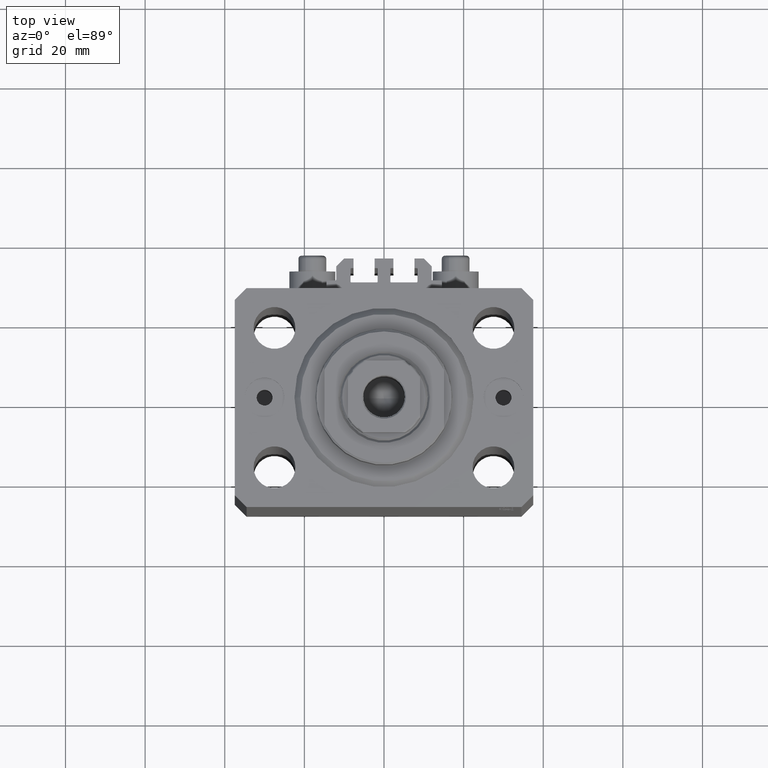
[diagram: clean part render]
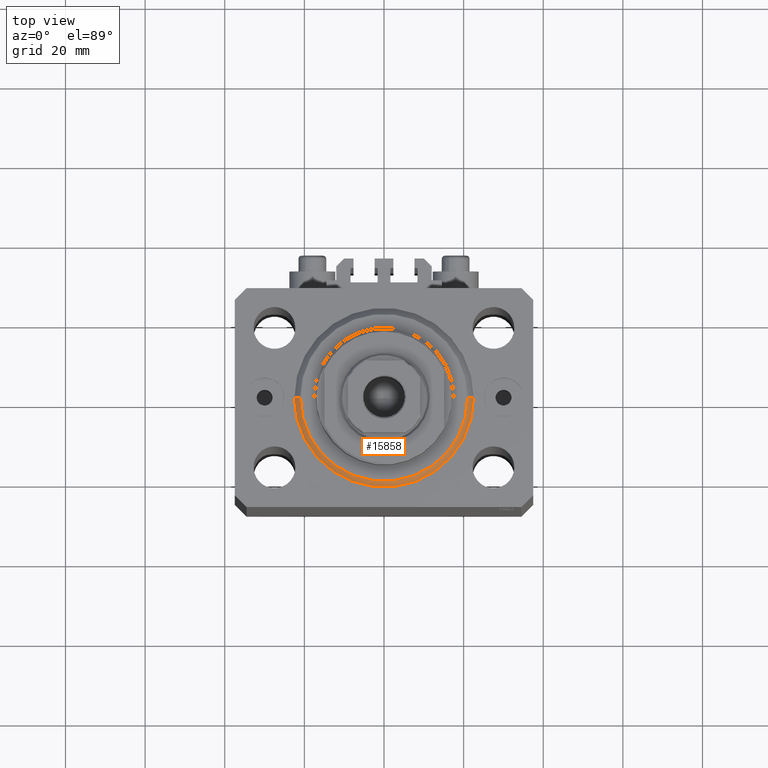
[diagram: same view with one face highlighted and labeled with its STEP entity id]
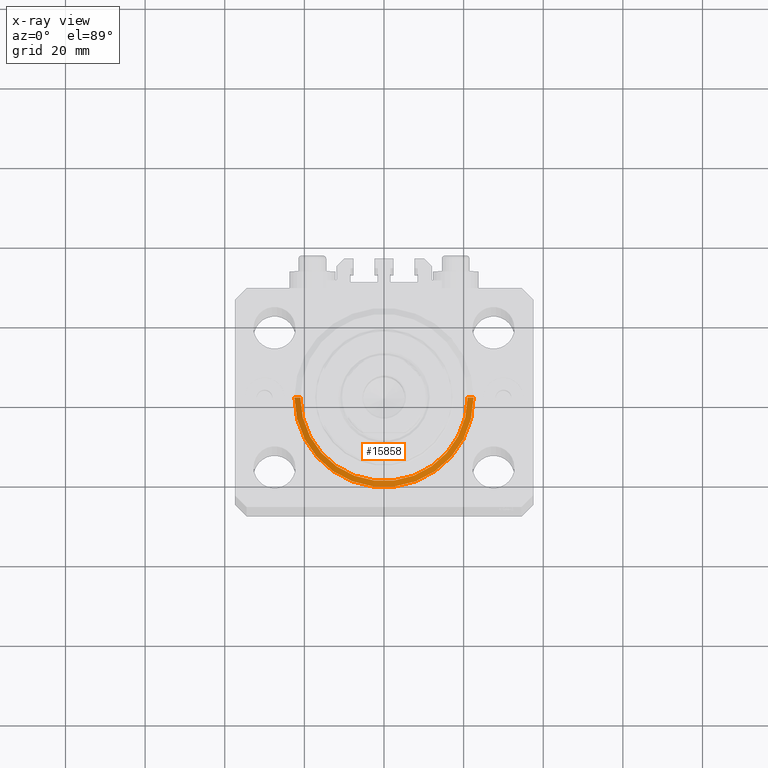
[diagram: x-ray of the same camera — body ghosted, the highlighted face saturated]
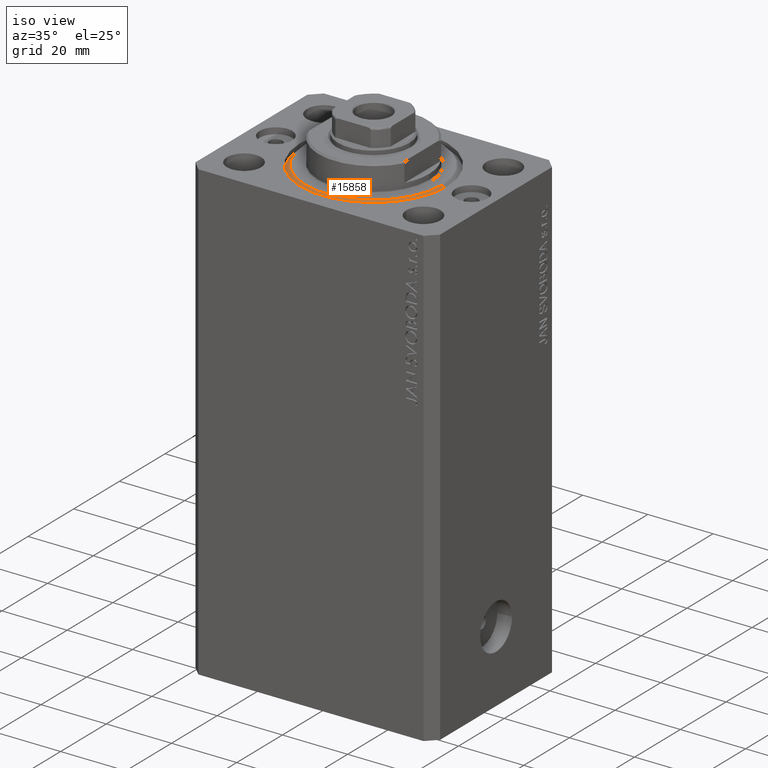
[diagram: same view with one face highlighted and labeled with its STEP entity id]
A machine part, top view. The second image highlights one B-rep face of the part: STEP entity #15858.
The next image is the same camera in x-ray: the body ghosted, the highlighted face saturated — about 0% of this face is hidden behind the body in this view.
A second angle (iso view) of the same face is appended — the face is thin or edge-on in the first view.
In plain terms, the highlighted conical surface has half-angle 45 deg.
Its self-contained STEP definition (entity closure, byte-faithful):
#2801 = CARTESIAN_POINT ( 'NONE',  ( -22.50000000000000355, 0.000000000000000000, 1.500000000000001332 ) ) ;
#4429 = DIRECTION ( 'NONE',  ( -0.000000000000000000, -0.000000000000000000, -1.000000000000000000 ) ) ;
#6014 = LINE ( 'NONE', #39193, #19429 ) ;
#7294 = DIRECTION ( 'NONE',  ( 1.000000000000000000, 0.000000000000000000, 0.000000000000000000 ) ) ;
#7578 = CARTESIAN_POINT ( 'NONE',  ( 20.99999999999998934, 0.000000000000000000, 0.000000000000000000 ) ) ;
#8258 = VERTEX_POINT ( 'NONE', #33497 ) ;
#8680 = CARTESIAN_POINT ( 'NONE',  ( 0.000000000000000000, 0.000000000000000000, 1.500000000000001332 ) ) ;
#8911 = DIRECTION ( 'NONE',  ( 1.000000000000000000, 0.000000000000000000, 0.000000000000000000 ) ) ;
#10440 = DIRECTION ( 'NONE',  ( -0.7071067811865500152, 8.659560562354963673E-17, 0.7071067811865451302 ) ) ;
#12335 = CONICAL_SURFACE ( 'NONE', #14006, 22.50000000000000355, 0.7853981633974517207 ) ;
#14006 = AXIS2_PLACEMENT_3D ( 'NONE', #8680, #15854, #8911 ) ;
#15854 = DIRECTION ( 'NONE',  ( -0.000000000000000000, -0.000000000000000000, 1.000000000000000000 ) ) ;
#15858 = ADVANCED_FACE ( 'NONE', ( #44965 ), #12335, .T. ) ;
#16348 = VERTEX_POINT ( 'NONE', #7578 ) ;
#19408 = EDGE_LOOP ( 'NONE', ( #21783, #42928, #28627, #26944 ) ) ;
#19429 = VECTOR ( 'NONE', #32278, 1000.000000000000114 ) ;
#20126 = VERTEX_POINT ( 'NONE', #32622 ) ;
#20696 = EDGE_CURVE ( 'NONE', #20126, #31295, #42185, .T. ) ;
#21783 = ORIENTED_EDGE ( 'NONE', *, *, #20696, .F. ) ;
#24734 = AXIS2_PLACEMENT_3D ( 'NONE', #36189, #4429, #7294 ) ;
#26944 = ORIENTED_EDGE ( 'NONE', *, *, #40125, .F. ) ;
#28627 = ORIENTED_EDGE ( 'NONE', *, *, #37116, .T. ) ;
#30242 = CARTESIAN_POINT ( 'NONE',  ( 0.000000000000000000, 0.000000000000000000, 1.500000000000001332 ) ) ;
#31271 = VECTOR ( 'NONE', #10440, 1000.000000000000114 ) ;
#31295 = VERTEX_POINT ( 'NONE', #2801 ) ;
#32278 = DIRECTION ( 'NONE',  ( 0.7071067811865500152, 0.000000000000000000, 0.7071067811865451302 ) ) ;
#32622 = CARTESIAN_POINT ( 'NONE',  ( -20.99999999999998934, 2.663606788145492628E-15, 0.000000000000000000 ) ) ;
#33497 = CARTESIAN_POINT ( 'NONE',  ( 22.50000000000000355, 2.755455298081545172E-15, 1.500000000000001332 ) ) ;
#33587 = DIRECTION ( 'NONE',  ( 1.000000000000000000, 0.000000000000000000, 0.000000000000000000 ) ) ;
#33820 = DIRECTION ( 'NONE',  ( -0.000000000000000000, -0.000000000000000000, 1.000000000000000000 ) ) ;
#33858 = CIRCLE ( 'NONE', #24734, 20.99999999999998934 ) ;
#34479 = EDGE_CURVE ( 'NONE', #16348, #20126, #33858, .T. ) ;
#35033 = CARTESIAN_POINT ( 'NONE',  ( -22.50000000000000355, 2.755455298081545172E-15, 1.500000000000001332 ) ) ;
#36189 = CARTESIAN_POINT ( 'NONE',  ( 0.000000000000000000, 0.000000000000000000, 0.000000000000000000 ) ) ;
#37116 = EDGE_CURVE ( 'NONE', #16348, #8258, #6014, .T. ) ;
#39193 = CARTESIAN_POINT ( 'NONE',  ( 22.50000000000000355, 0.000000000000000000, 1.500000000000001332 ) ) ;
#40125 = EDGE_CURVE ( 'NONE', #31295, #8258, #44682, .T. ) ;
#41633 = AXIS2_PLACEMENT_3D ( 'NONE', #30242, #33820, #33587 ) ;
#42185 = LINE ( 'NONE', #35033, #31271 ) ;
#42928 = ORIENTED_EDGE ( 'NONE', *, *, #34479, .F. ) ;
#44682 = CIRCLE ( 'NONE', #41633, 22.50000000000000355 ) ;
#44965 = FACE_OUTER_BOUND ( 'NONE', #19408, .T. ) ;